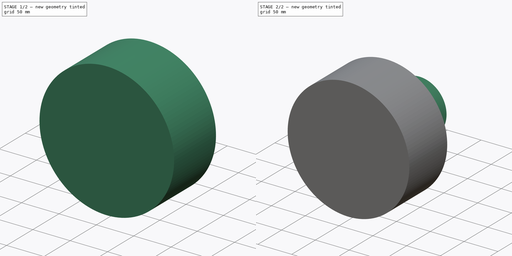
[diagram: build sequence overview — one tinted view per stage of 2, left to right]
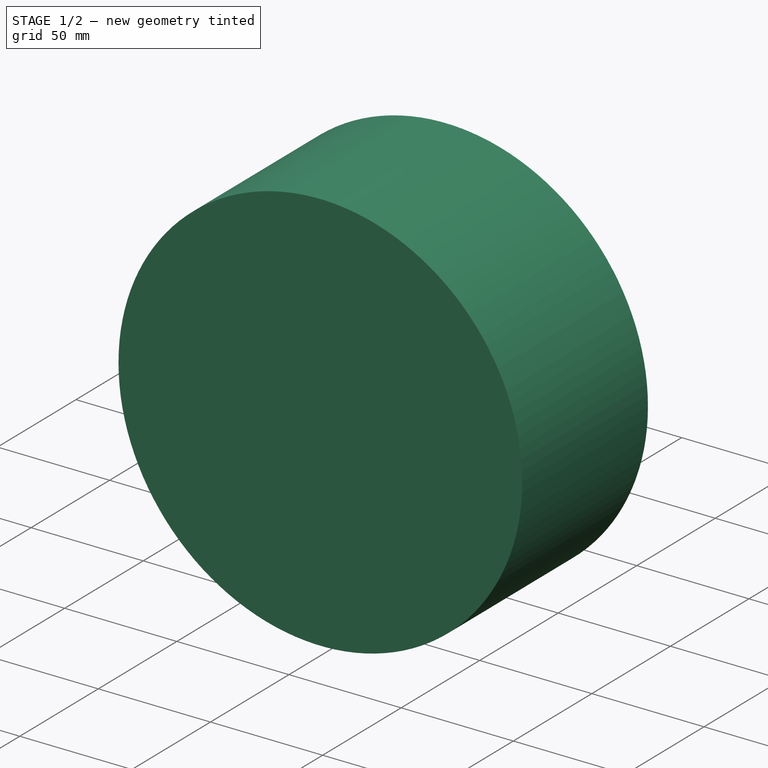
[diagram: stage 1 of 2 — iso view after this stage's code; geometry added in this stage tinted green]
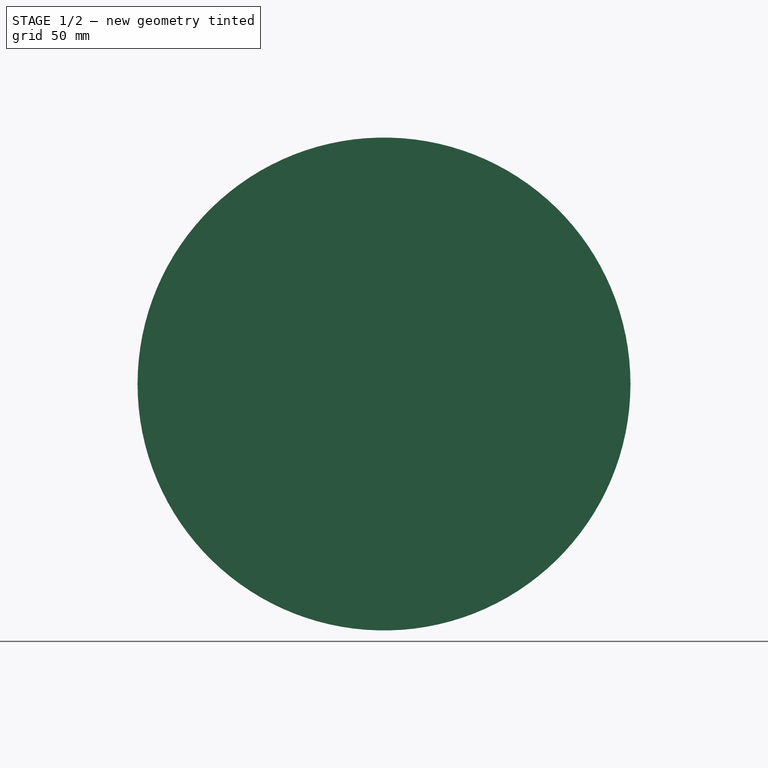
[diagram: stage 1 of 2 — front view after this stage's code; geometry added in this stage tinted green]
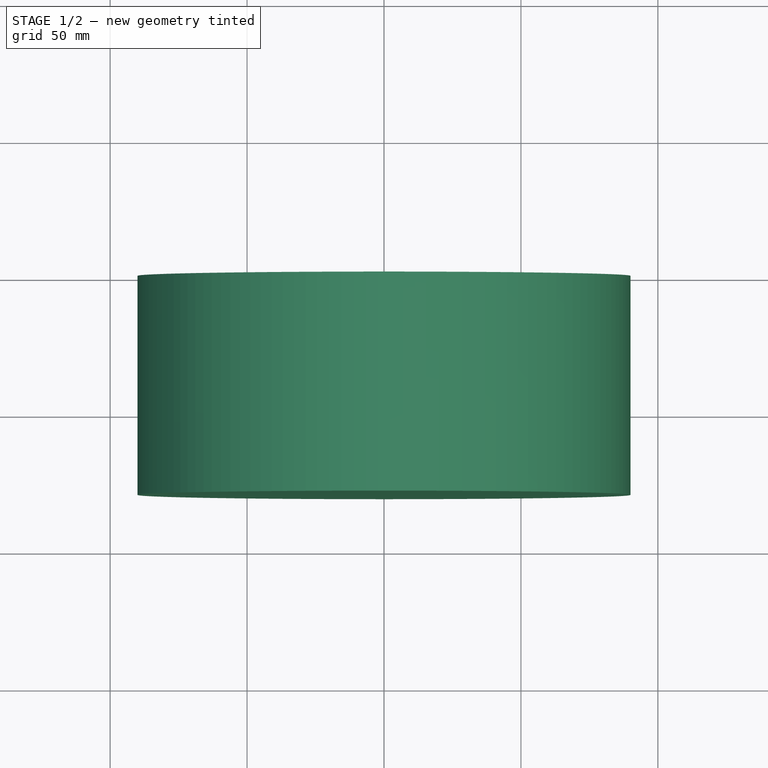
[diagram: stage 1 of 2 — top view after this stage's code; geometry added in this stage tinted green]
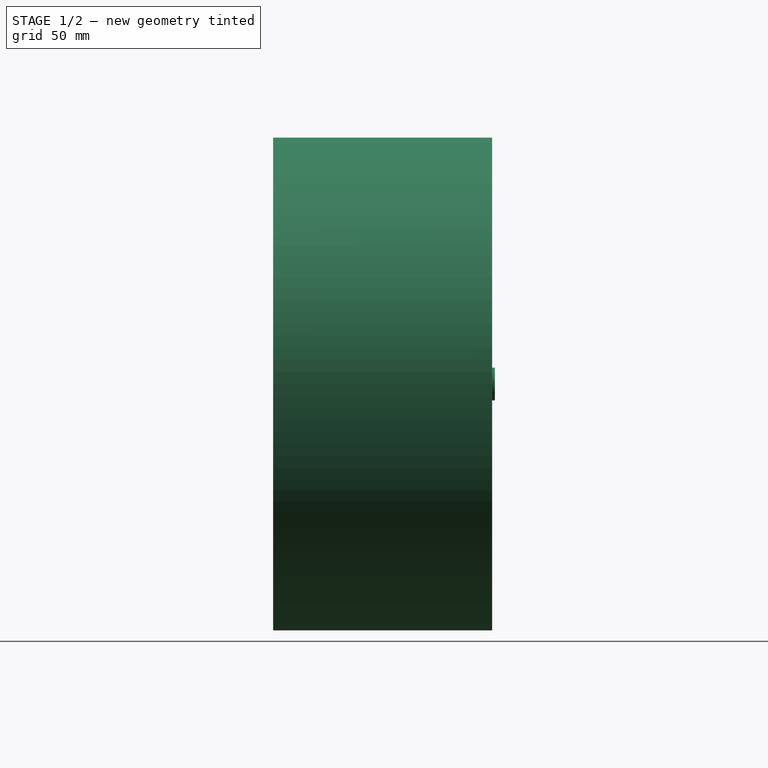
[diagram: stage 1 of 2 — right view after this stage's code; geometry added in this stage tinted green]
FCSTD DOCUMENT  (FreeCAD 0.19R24291 (Git))
Label: conedemo2.4
License: All rights reserved
LicenseURL: http://en.wikipedia.org/wiki/All_rights_reserved
objects: Sketcher::SketchObject×5, Part::FeaturePython×5, PartDesign::Body×4, PartDesign::Revolution×2, Spreadsheet::Sheet×1, PartDesign::Pad×1
note: 20 computed .brp shape members not serialized (recipe doc carries the construction recipe); baked Part::Feature solids carry a one-line shape summary decoded from their .brp

FEATURE [PartDesign::Body] Body
  Group = -> [Sketch,Revolution]
  Origin = -> Origin
  Tip = -> Revolution
FEATURE [Sketcher::SketchObject] Sketch002
  FullyConstrained = true
  MapMode = 5
  Placement = pos=(0,0,0) rot=(1,0,0;1.5708rad)
  Support = -> [XZ_Plane002]
  sketch-geometry (1):
    g0: Circle CenterX=0 CenterY=0 CenterZ=0 NormalX=0 NormalY=0 NormalZ=1 AngleXU=0 Radius=90
  constraints (2):
    c: Coincident(g0,g-1)
    c: Radius(g0) = 90
FEATURE [PartDesign::Pad] Pad001
  Direction = (1,1,1)
  Length = 80
  Length2 = 100
  Placement = pos=(0,0,0) rot=(1,0,0;1.5708rad)
  Profile = -> Sketch002
  Type = 0
FEATURE [Sketcher::SketchObject] Sketch003
  FullyConstrained = true
  MapMode = 5
  Placement = pos=(0,0,0) rot=(-1,0,0;1.5708rad)
  Support = -> [Pad001]
FEATURE [PartDesign::Body] Body002
  Group = -> [Sketch002,Pad001,Sketch003]
  Origin = -> Origin002
  Tip = -> Pad001
FEATURE [Sketcher::SketchObject] Sketch004
  FullyConstrained = true
  MapMode = 5
  Support = -> [XY_Plane003]
  expr: Constraints[9] = Spreadsheet.M2e
  sketch-geometry (4):
    g0: LineSegment StartX=0 StartY=0 StartZ=0 EndX=0 EndY=1 EndZ=0
    g1: LineSegment StartX=0 StartY=1 StartZ=0 EndX=6 EndY=1 EndZ=0
    g2: LineSegment StartX=6 StartY=1 StartZ=0 EndX=6 EndY=0 EndZ=0
    g3: LineSegment StartX=6 StartY=0 StartZ=0 EndX=0 EndY=0 EndZ=0
  constraints (11):
    c: Coincident(g0,g-1)
    c: PointOnObject(g0,g-2)
    c: Coincident(g1,g0)
    c: Horizontal(g1)
    c: Coincident(g2,g1)
    c: Coincident(g3,g2)
    c: Coincident(g3,g0)
    c: Horizontal(g3)
    c: Vertical(g2)
    c: Distance(g2) = 1
    c: Distance(g1) = 6
FEATURE [PartDesign::Revolution] Revolution001
  Angle = 360
  Axis = (0,1,0)
  Base = (0,0,0)
  Profile = -> Sketch004
  ReferenceAxis = -> Sketch004 [V_Axis]
  Reversed = true
FEATURE [PartDesign::Body] Body003
  Group = -> [Sketch004,Revolution001]
  Origin = -> Origin003
  Tip = -> Revolution001
FEATURE [Part::FeaturePython] Absorber  # WARN: FeaturePython — macro-defined, semantics opaque (R4)
  HitsFromBeam = 0
  OpticalType = 1
FEATURE [Part::FeaturePython] Mirror  # WARN: FeaturePython — macro-defined, semantics opaque (R4)
  Base = -> [Revolution]
  HitsFromBeam = 77
  OpticalType = 0
FEATURE [Part::FeaturePython] Beam  # WARN: FeaturePython — macro-defined, semantics opaque (R4)
  BeamDistance = 0.1
  BeamNrColumns = 40000
  BeamNrRows = 1
  ConeAngle = 360
  HideFirstPart = false
  MaxNrReflections = 200
  MaxRayLength = 1000000
  Placement = pos=(2000,-40,0) rot=(0,0,1;0rad)
  Power = true
  Spherical = true
  Wavelength = 580
  expr: .Placement.Base.x = Spreadsheet.Ld
FEATURE [Part::FeaturePython] Absorber001  # WARN: FeaturePython — macro-defined, semantics opaque (R4)
  Base = -> [Pad001]
  HitsFromBeam = 330
  OpticalType = 1
FEATURE [Sketcher::SketchObject] Sketch005
  FullyConstrained = true
  MapMode = 5
  Support = -> [XY_Plane004]
  sketch-geometry (4):
    g0: LineSegment StartX=-47.1248 StartY=80 StartZ=0 EndX=47.1248 EndY=80 EndZ=0
    g1: LineSegment StartX=47.1248 StartY=80 StartZ=0 EndX=6 EndY=1 EndZ=0
    g2: LineSegment StartX=-47.1248 StartY=80 StartZ=0 EndX=-6 EndY=1 EndZ=0
    g3: LineSegment StartX=-6 StartY=1 StartZ=0 EndX=6 EndY=1 EndZ=0
  constraints (11):
    c: Horizontal(g0)
    c: Coincident(g1,g0)
    c: Coincident(g2,g0)
    c: Coincident(g3,g2)
    c: Coincident(g3,g1)
    c: Equal(g1,g2)
    c: Symmetric(g2,g1,g-2)
    c: Angle(g1,g2) = 0.959931
    c: DistanceY(g-1,g1) = 1
    c: Distance(g3) = 12
    c: DistanceY(g-1,g0) = 80
FEATURE [PartDesign::Body] Body004
  Group = -> [Sketch005]
  Origin = -> Origin004
FEATURE [Part::FeaturePython] Absorber002  # WARN: FeaturePython — macro-defined, semantics opaque (R4)
  Base = -> [Body003]
  HitsFromBeam = 14
  OpticalType = 1
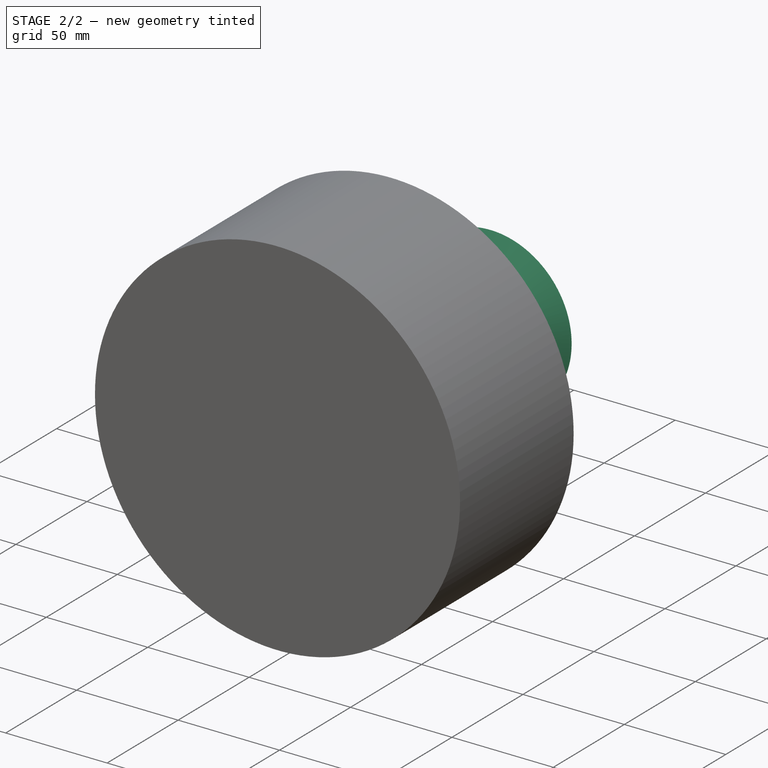
[diagram: stage 2 of 2 — iso view after this stage's code; geometry added in this stage tinted green]
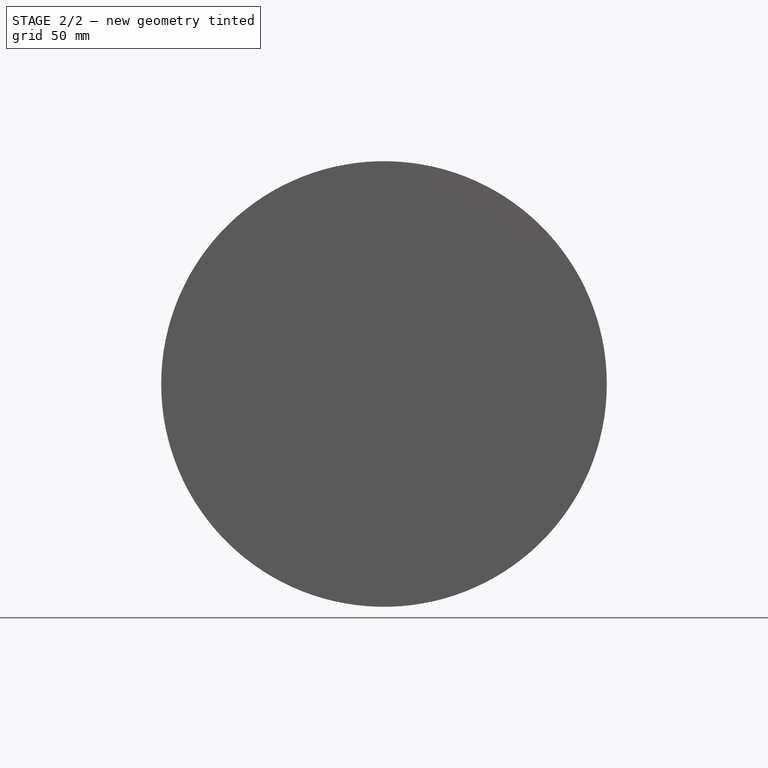
[diagram: stage 2 of 2 — front view after this stage's code; geometry added in this stage tinted green]
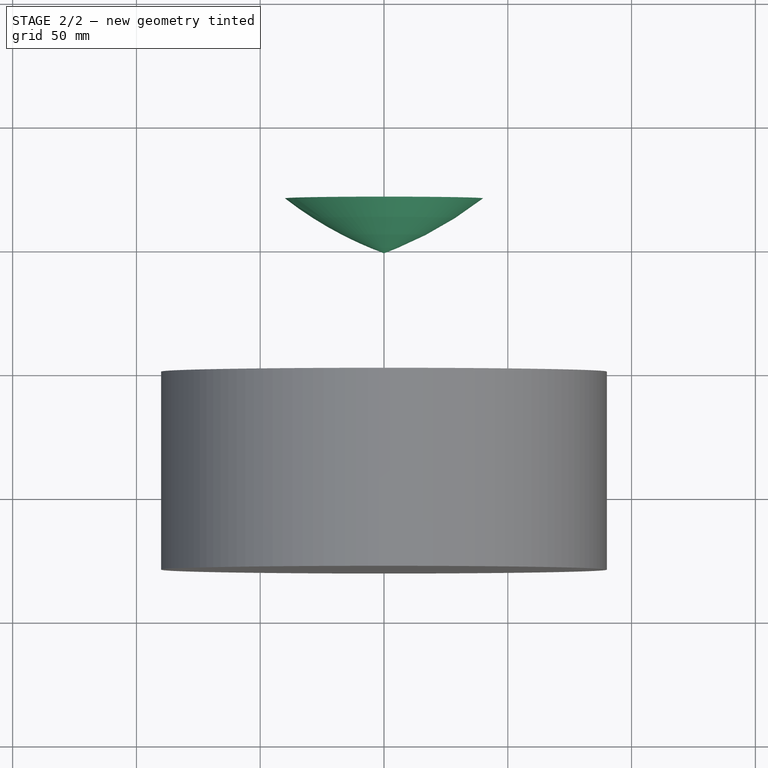
[diagram: stage 2 of 2 — top view after this stage's code; geometry added in this stage tinted green]
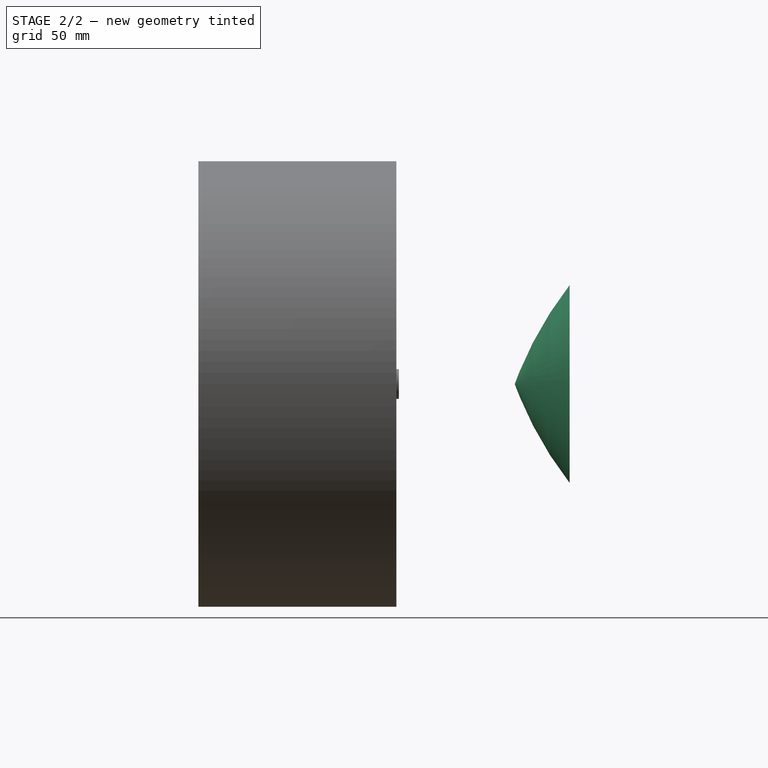
[diagram: stage 2 of 2 — right view after this stage's code; geometry added in this stage tinted green]
FEATURE [Sketcher::SketchObject] Sketch
  FullyConstrained = false
  MapMode = 5
  Support = -> [XY_Plane]
  expr: Constraints[1] = Spreadsheet.M1d0
  expr: Constraints[9] = Spreadsheet.M1l
  sketch-geometry (19):
    g0: LineSegment StartX=-1.07e-14 StartY=50 StartZ=0 EndX=-1.07e-14 EndY=41.6905 EndZ=0
    g1: LineSegment StartX=-30 StartY=50 StartZ=0 EndX=-30 EndY=55 EndZ=0
    g2: LineSegment StartX=-1.07e-14 StartY=50 StartZ=0 EndX=-1.07e-14 EndY=55 EndZ=0
    g3: LineSegment StartX=-1.07e-14 StartY=55 StartZ=0 EndX=-30 EndY=55 EndZ=0
    g4: ArcOfCircle CenterX=0 CenterY=100 CenterZ=0 NormalX=0 NormalY=0 NormalZ=1 AngleXU=0 Radius=58.3095 StartAngle=4.17197 EndAngle=4.71239
    g5: ArcOfCircle CenterX=20 CenterY=115 CenterZ=0 NormalX=0 NormalY=0 NormalZ=1 AngleXU=0 Radius=70 StartAngle=3.80854 EndAngle=4.42264
    g6: Circle CenterX=20 CenterY=115 CenterZ=0 NormalX=0 NormalY=0 NormalZ=1 AngleXU=0 Radius=70
    g7: LineSegment StartX=-35 StartY=71.6987 StartZ=0 EndX=0 EndY=71.6987 EndZ=0
    g8: LineSegment StartX=0 StartY=71.6987 StartZ=0 EndX=2.84e-14 EndY=47.918 EndZ=0
    g9: LineSegment StartX=-10.9564 StartY=49.7454 StartZ=0 EndX=-37.0674 EndY=71.3758 EndZ=0
    g10: LineSegment StartX=5.92408 StartY=44.9742 StartZ=0 EndX=-7.93852 EndY=48.1318 EndZ=0
    g11: ArcOfEllipse CenterX=50 CenterY=196.708 CenterZ=0 NormalX=0 NormalY=0 NormalZ=1 MajorRadius=157.79 MinorRadius=151.018 AngleXU=-1.5708 StartAngle=5.64473 EndAngle=5.94573
    g12: LineSegment StartX=50 StartY=38.918 StartZ=0 EndX=50 EndY=354.498 EndZ=0
    g13: LineSegment StartX=201.018 StartY=196.708 StartZ=0 EndX=-101.018 EndY=196.708 EndZ=0
    g14: GeomPoint X=50 Y=150.977 Z=0
    g15: GeomPoint X=50 Y=242.439 Z=0
    g16: LineSegment StartX=-40 StartY=70 StartZ=0 EndX=0 EndY=70 EndZ=0
    g17: LineSegment StartX=0 StartY=70 StartZ=0 EndX=2.84e-14 EndY=47.918 EndZ=0
    g18: LineSegment StartX=-7.1e-15 StartY=47.8173 StartZ=0 EndX=0 EndY=70 EndZ=0
  constraints (44):
    c: Vertical(g0)
    c: DistanceY(g-1,g0) = 50
    c: Vertical(g1)
    c: Coincident(g2,g0)
    c: Vertical(g2)
    c: Coincident(g3,g2)
    c: Coincident(g3,g1)
    c: Horizontal(g3)
    c: Equal(g2,g1)
    c: Distance(g3) = 30
    c: Distance(g2) = 5
    c: Coincident(g4,g1)
    c: Distance(g0,g4) = 50
    c: Coincident(g0,g4)
    c: PointOnObject(g2,g-2)
    c: PointOnObject(g4,g-2)
    c: Coincident(g6,g5)
    c: Radius(g6) = 70
    c: DistanceY(g0,g5) = 65
    c: PointOnObject(g5,g6)
    c: PointOnObject(g5,g-2)
    c: DistanceX(g4,g5) = 20
    c: Coincident(g7,g5)
    c: PointOnObject(g7,g-2)
    c: Horizontal(g7)
    c: Coincident(g8,g7)
    c: Coincident(g8,g5)
    c: Distance(g7) = 35
    c: Tangent(g9,g5)
    c: InternalAlignment(g12-g15 -> g11) x4
    c: Vertical(g12)
    c: DistanceX(g5,g12) = 50
    c: DistanceY(g5,g12) = -9
    c: DistanceX(g11) = -40
    c: DistanceY(g11) = 70
    c: DistanceY(g12,g11) = 157.79
    c: PointOnObject(g11,g8)
    c: Coincident(g16,g11)
    c: PointOnObject(g16,g8)
    c: Horizontal(g16)
    c: Coincident(g17,g16)
    c: Coincident(g17,g5)
    c: Coincident(g18,g11)
    c: Coincident(g18,g16)
FEATURE [Spreadsheet::Sheet] Spreadsheet
  cells = A1=mirroir 1 largeur:; B1(M1l)=30; C1=miroir 1 R x; D1(M1rx)=8; A2=mirroir 1 rayon:; B2(M1d)==90 - B1; C2=miroir 1 Ry; D2(M1ry)=0; A3=mirroir 1 hauteur; B3(M1h)=20; A4=miroir 1 distf0; B4(M1d0)=50; A5=cam dist0; B5(Camd0)=80; A6=miroir 2 rayon; B6(M2r)=45; A7=miroir 2 épaisseur :; B7(M2e)=1; A8=lum dist; B8(Ld)=2000
FEATURE [PartDesign::Revolution] Revolution
  Angle = 360
  Axis = (0,1,0)
  Base = (0,0,0)
  Profile = -> Sketch
  ReferenceAxis = -> Sketch [V_Axis]
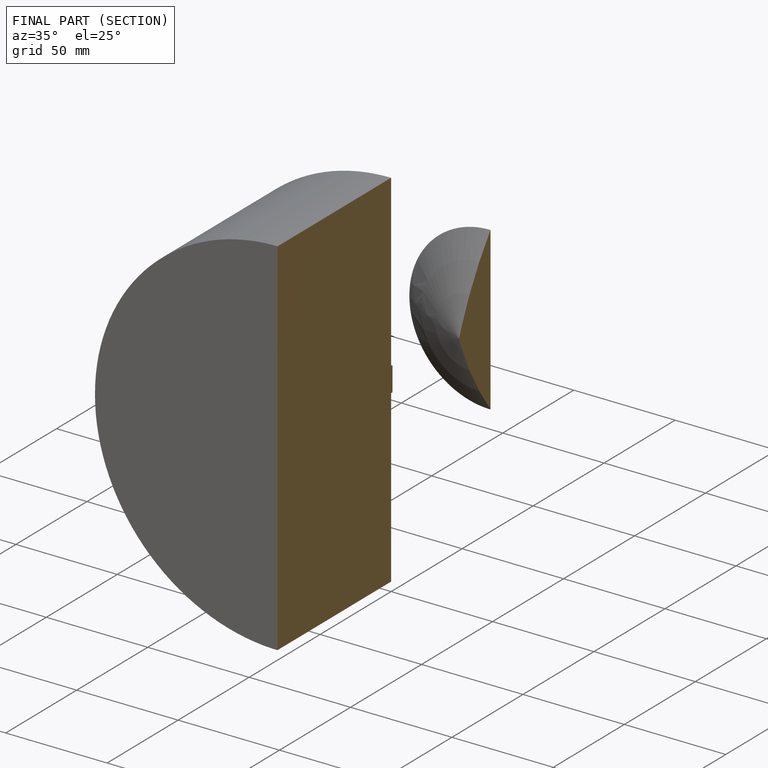
[diagram: finished part — half-section view (interior)]
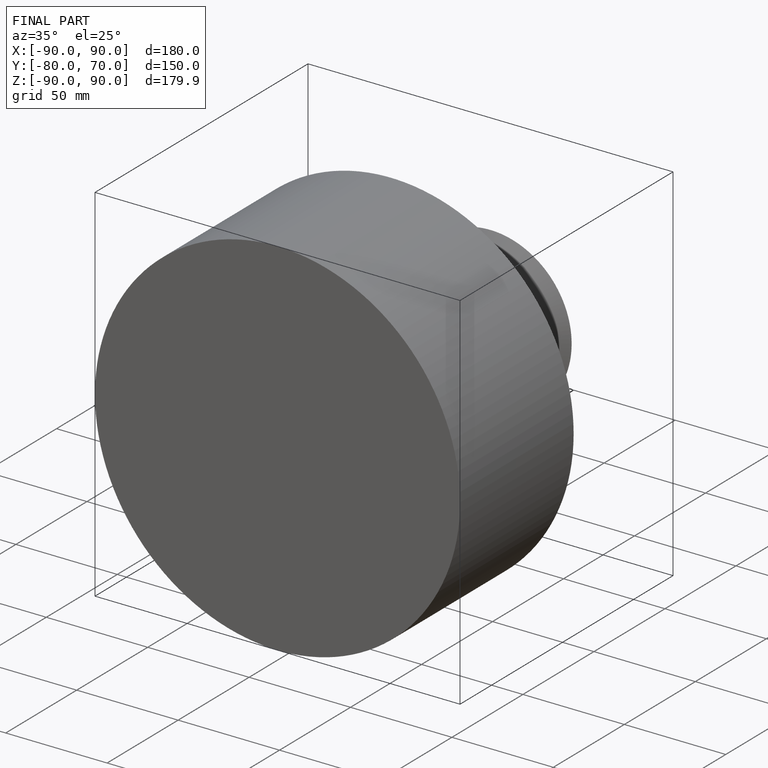
[diagram: finished part — iso view with bounding-box wireframe]
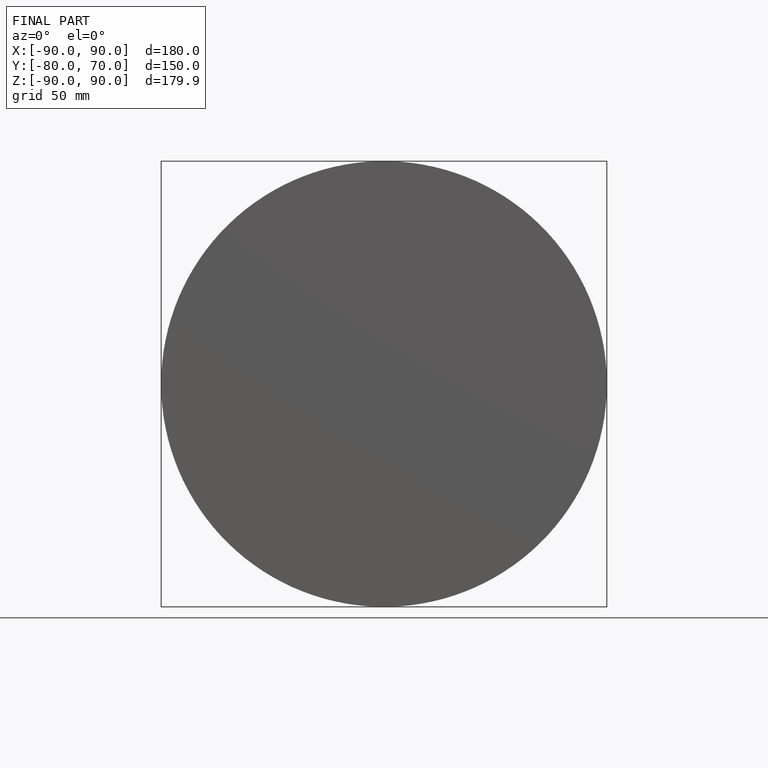
[diagram: finished part — front view with bounding-box wireframe]
